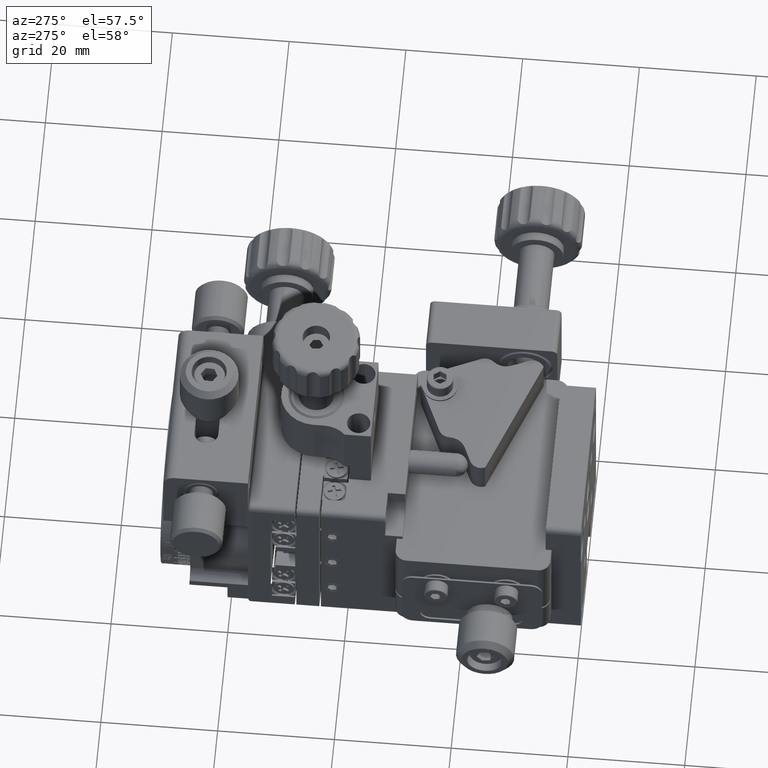
[diagram: clean part render]
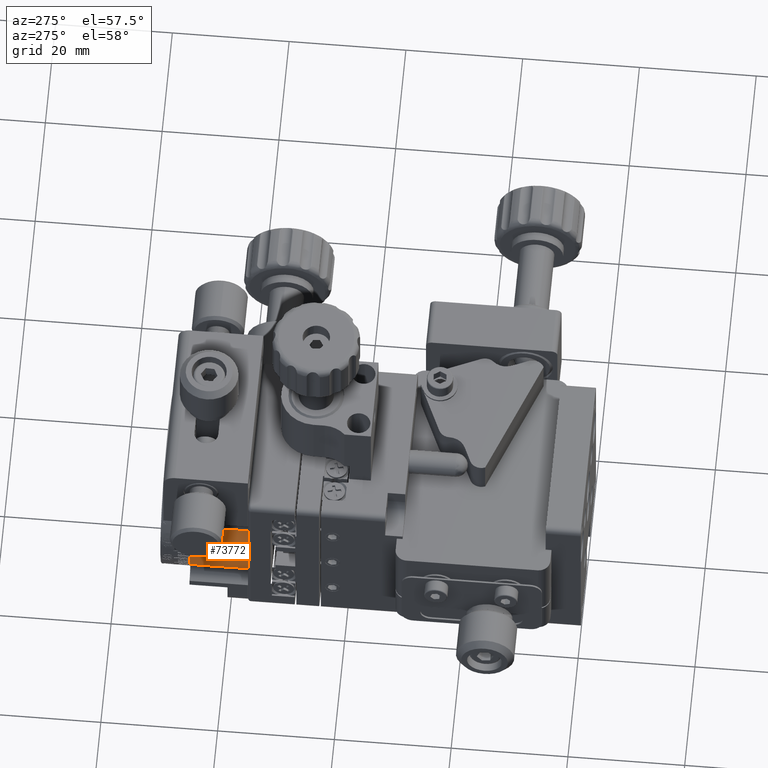
[diagram: same view with one face highlighted and labeled with its STEP entity id]
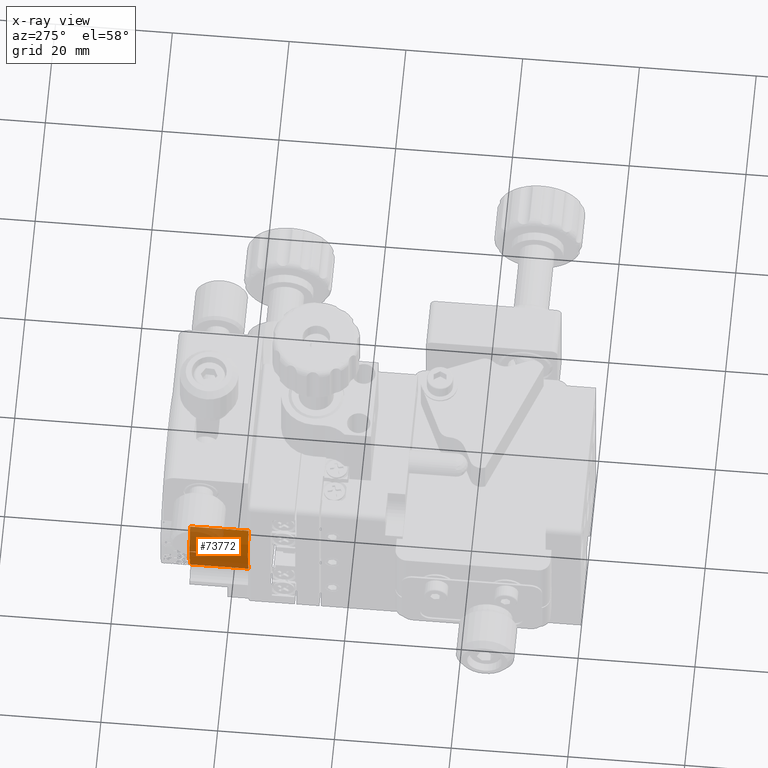
[diagram: x-ray of the same camera — body ghosted, the highlighted face saturated]
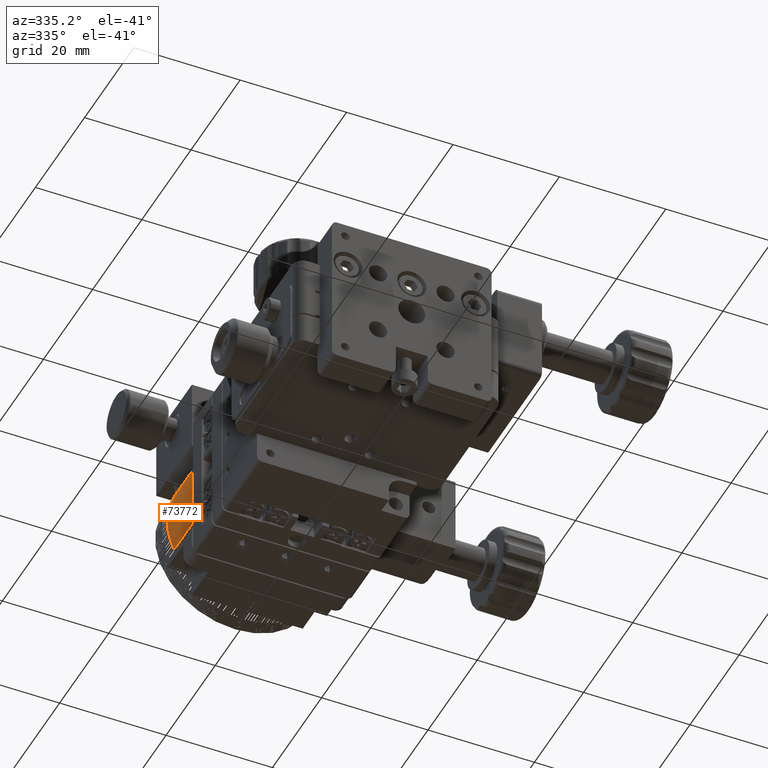
[diagram: same view with one face highlighted and labeled with its STEP entity id]
A machine part, auxiliary view. The second image highlights one B-rep face of the part: STEP entity #73772.
The next image is the same camera in x-ray: the body ghosted, the highlighted face saturated — about 40% of this face is hidden behind the body in this view.
A second angle (auxiliary view) of the same face is appended — the face is thin or edge-on in the first view.
In plain terms, the highlighted cylindrical surface (partial cylindrical patch) has radius 15 mm, axis along (-0, 1, -0).
Its self-contained STEP definition (entity closure, byte-faithful):
#2748 = CARTESIAN_POINT ( 'NONE',  ( 2.870967352741615741E-13, 64.00212255370689718, 5.551115123125782702E-14 ) ) ;
#4153 = EDGE_CURVE ( 'NONE', #75544, #18272, #54333, .T. ) ;
#4154 = CARTESIAN_POINT ( 'NONE',  ( -14.99991666643489552, 64.00212255370689718, 0.05000000000005000445 ) ) ;
#4862 = EDGE_CURVE ( 'NONE', #68256, #40325, #42653, .T. ) ;
#5118 = DIRECTION ( 'NONE',  ( -0.000000000000000000, 1.000000000000000000, -0.000000000000000000 ) ) ;
#5228 = EDGE_CURVE ( 'NONE', #68256, #16937, #24068, .T. ) ;
#6813 = EDGE_CURVE ( 'NONE', #18272, #40325, #56559, .T. ) ;
#12855 = EDGE_CURVE ( 'NONE', #39480, #75544, #54228, .T. ) ;
#15665 = CARTESIAN_POINT ( 'NONE',  ( -13.74772708486723261, 57.00212255370689718, 6.000000000000054179 ) ) ;
#16065 = LINE ( 'NONE', #15665, #78294 ) ;
#16937 = VERTEX_POINT ( 'NONE', #71082 ) ;
#18272 = VERTEX_POINT ( 'NONE', #47347 ) ;
#19302 = ORIENTED_EDGE ( 'NONE', *, *, #45082, .T. ) ;
#21716 = CARTESIAN_POINT ( 'NONE',  ( -14.99991666643489552, 64.00212255370689718, -0.04999999999994592104 ) ) ;
#21741 = VECTOR ( 'NONE', #47418, 1000.000000000000000 ) ;
#22533 = DIRECTION ( 'NONE',  ( 0.000000000000000000, 0.000000000000000000, 1.000000000000000000 ) ) ;
#23761 = DIRECTION ( 'NONE',  ( -0.000000000000000000, -1.000000000000000000, -0.000000000000000000 ) ) ;
#24068 = CIRCLE ( 'NONE', #69465, 15.00000000000000355 ) ;
#29228 = AXIS2_PLACEMENT_3D ( 'NONE', #53850, #66026, #47757 ) ;
#34435 = DIRECTION ( 'NONE',  ( 0.000000000000000000, 0.000000000000000000, -1.000000000000000000 ) ) ;
#34498 = AXIS2_PLACEMENT_3D ( 'NONE', #80270, #23761, #55476 ) ;
#35636 = CARTESIAN_POINT ( 'NONE',  ( -14.99991666643489552, 57.00212255370689718, -0.04999999999994592104 ) ) ;
#35942 = LINE ( 'NONE', #43233, #67785 ) ;
#39398 = DIRECTION ( 'NONE',  ( 0.000000000000000000, -1.000000000000000000, 0.000000000000000000 ) ) ;
#39480 = VERTEX_POINT ( 'NONE', #4154 ) ;
#40325 = VERTEX_POINT ( 'NONE', #56029 ) ;
#40838 = FACE_OUTER_BOUND ( 'NONE', #59849, .T. ) ;
#41655 = ORIENTED_EDGE ( 'NONE', *, *, #6813, .T. ) ;
#42653 = LINE ( 'NONE', #78824, #79884 ) ;
#43233 = CARTESIAN_POINT ( 'NONE',  ( -14.99991666643489552, 57.00212255370689718, 0.05000000000005000445 ) ) ;
#43506 = CARTESIAN_POINT ( 'NONE',  ( -14.99991666643489552, 67.00212255370689718, 0.05000000000005000445 ) ) ;
#44001 = ORIENTED_EDGE ( 'NONE', *, *, #68095, .T. ) ;
#45082 = EDGE_CURVE ( 'NONE', #77477, #39480, #35942, .T. ) ;
#46493 = ORIENTED_EDGE ( 'NONE', *, *, #4153, .T. ) ;
#47347 = CARTESIAN_POINT ( 'NONE',  ( -14.99991666643489907, 67.00212255370689718, -0.04999999999994592104 ) ) ;
#47418 = DIRECTION ( 'NONE',  ( -0.000000000000000000, 1.000000000000000000, -0.000000000000000000 ) ) ;
#47757 = DIRECTION ( 'NONE',  ( 0.000000000000000000, 0.000000000000000000, 1.000000000000000000 ) ) ;
#48353 = DIRECTION ( 'NONE',  ( -0.000000000000000000, 1.000000000000000000, -0.000000000000000000 ) ) ;
#51554 = AXIS2_PLACEMENT_3D ( 'NONE', #61160, #59545, #22533 ) ;
#51910 = DIRECTION ( 'NONE',  ( -0.000000000000000000, 1.000000000000000000, -0.000000000000000000 ) ) ;
#52398 = DIRECTION ( 'NONE',  ( 0.000000000000000000, 0.000000000000000000, -1.000000000000000000 ) ) ;
#52465 = VERTEX_POINT ( 'NONE', #61597 ) ;
#53527 = CARTESIAN_POINT ( 'NONE',  ( 2.870967352741615741E-13, 57.00212255370689718, 5.551115123125782702E-14 ) ) ;
#53850 = CARTESIAN_POINT ( 'NONE',  ( 2.870967352741615741E-13, 57.00212255370689718, 5.551115123125782702E-14 ) ) ;
#54228 = CIRCLE ( 'NONE', #62051, 15.00000000000000355 ) ;
#54333 = LINE ( 'NONE', #35636, #21741 ) ;
#54442 = ORIENTED_EDGE ( 'NONE', *, *, #5228, .T. ) ;
#54620 = DIRECTION ( 'NONE',  ( 0.000000000000000000, -1.000000000000000000, 0.000000000000000000 ) ) ;
#55476 = DIRECTION ( 'NONE',  ( 0.000000000000000000, 0.000000000000000000, 1.000000000000000000 ) ) ;
#55526 = CARTESIAN_POINT ( 'NONE',  ( -13.74772708486723261, 57.00212255370689718, -5.999999999999950262 ) ) ;
#56029 = CARTESIAN_POINT ( 'NONE',  ( -13.74772708486723261, 67.00212255370689718, -5.999999999999950262 ) ) ;
#56559 = CIRCLE ( 'NONE', #34498, 15.00000000000000355 ) ;
#59545 = DIRECTION ( 'NONE',  ( -0.000000000000000000, -1.000000000000000000, -0.000000000000000000 ) ) ;
#59849 = EDGE_LOOP ( 'NONE', ( #79768, #19302, #61073, #46493, #41655, #73288, #54442, #44001 ) ) ;
#61073 = ORIENTED_EDGE ( 'NONE', *, *, #12855, .T. ) ;
#61160 = CARTESIAN_POINT ( 'NONE',  ( 2.870967352741615741E-13, 67.00212255370689718, 5.551115123125782702E-14 ) ) ;
#61597 = CARTESIAN_POINT ( 'NONE',  ( -13.74772708486723261, 67.00212255370689718, 6.000000000000054179 ) ) ;
#62051 = AXIS2_PLACEMENT_3D ( 'NONE', #2748, #39398, #52398 ) ;
#66026 = DIRECTION ( 'NONE',  ( -0.000000000000000000, 1.000000000000000000, -0.000000000000000000 ) ) ;
#67785 = VECTOR ( 'NONE', #54620, 1000.000000000000000 ) ;
#68095 = EDGE_CURVE ( 'NONE', #16937, #52465, #16065, .T. ) ;
#68256 = VERTEX_POINT ( 'NONE', #55526 ) ;
#69465 = AXIS2_PLACEMENT_3D ( 'NONE', #53527, #5118, #34435 ) ;
#71082 = CARTESIAN_POINT ( 'NONE',  ( -13.74772708486723261, 57.00212255370689718, 6.000000000000054179 ) ) ;
#73288 = ORIENTED_EDGE ( 'NONE', *, *, #4862, .F. ) ;
#73772 = ADVANCED_FACE ( 'NONE', ( #40838 ), #77828, .T. ) ;
#75544 = VERTEX_POINT ( 'NONE', #21716 ) ;
#76614 = EDGE_CURVE ( 'NONE', #52465, #77477, #80058, .T. ) ;
#77477 = VERTEX_POINT ( 'NONE', #43506 ) ;
#77828 = CYLINDRICAL_SURFACE ( 'NONE', #29228, 15.00000000000000355 ) ;
#78294 = VECTOR ( 'NONE', #51910, 1000.000000000000000 ) ;
#78824 = CARTESIAN_POINT ( 'NONE',  ( -13.74772708486723261, 57.00212255370689718, -5.999999999999950262 ) ) ;
#79768 = ORIENTED_EDGE ( 'NONE', *, *, #76614, .T. ) ;
#79884 = VECTOR ( 'NONE', #48353, 1000.000000000000000 ) ;
#80058 = CIRCLE ( 'NONE', #51554, 15.00000000000000355 ) ;
#80270 = CARTESIAN_POINT ( 'NONE',  ( 2.870967352741615741E-13, 67.00212255370689718, 5.551115123125782702E-14 ) ) ;